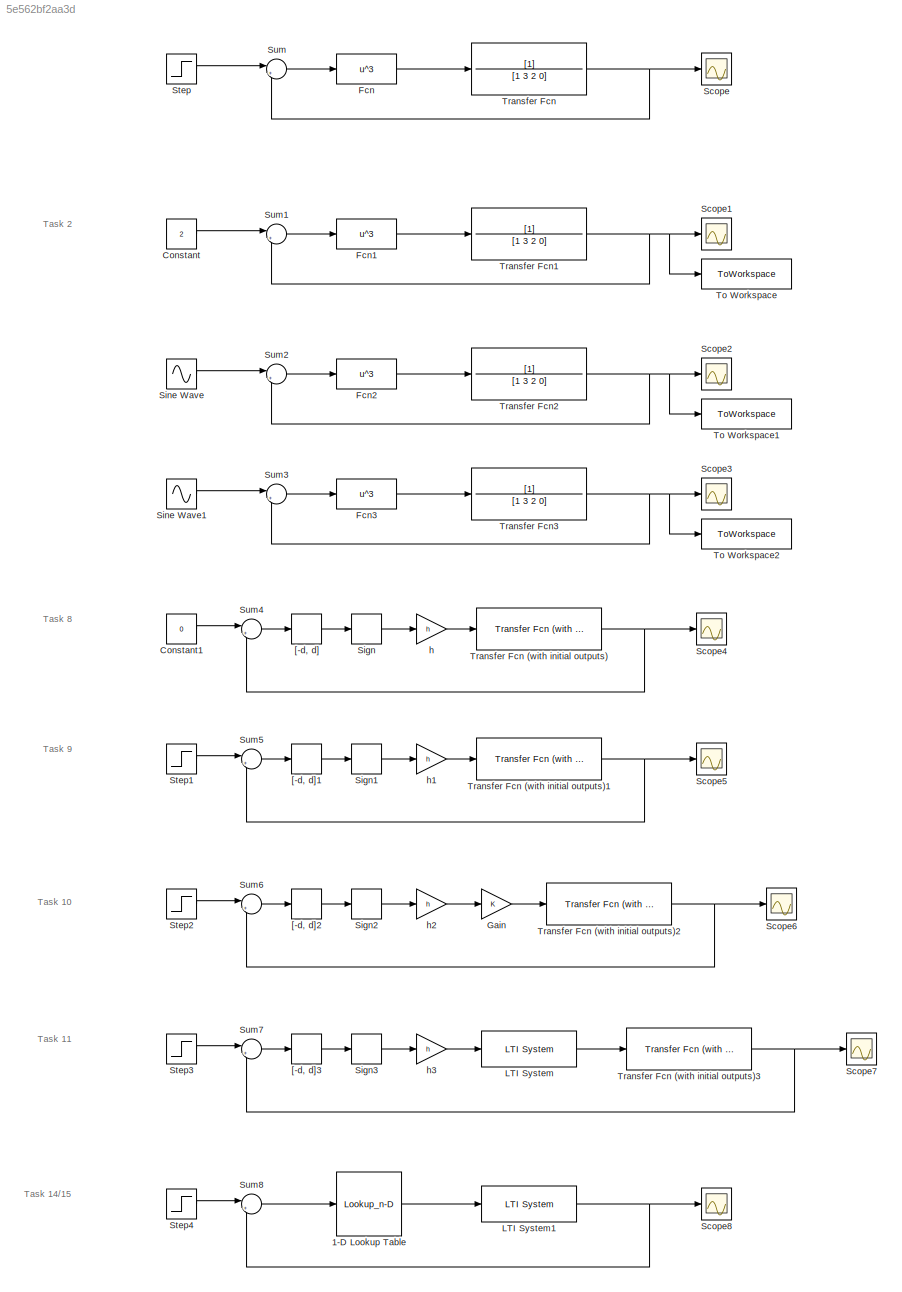
MODEL slx_5e562bf2aa3d
KIND model
CONFIG AbsTol = auto
CONFIG EnableMultiTasking = off
CONFIG FixedStep = auto
CONFIG MaxStep = auto
CONFIG MinStep = auto
CONFIG RelTol = 1e-3
CONFIG SampleTimeConstraint = Unconstrained
CONFIG Solver = VariableStepAuto
CONFIG SolverName = VariableStepAuto
CONFIG StartTime = 0.0
CONFIG StopTime = 20
BLOCK [Lookup_n-D] 1-D Lookup Table
  BreakpointsForDimension1 = [-1 0 1]
  InternalRulePriority = Speed
  NumberOfTableDimensions = 1
  Ports = [1, 1]
  RndMeth = Simplest
  Table = [-0.2 0 1]
BLOCK [Constant] Constant
  Value = 2
BLOCK [Constant] Constant1
  Value = 0
BLOCK [Fcn] Fcn
  Expr = u^3
BLOCK [Fcn] Fcn1
  Expr = u^3
BLOCK [Fcn] Fcn2
  Expr = u^3
BLOCK [Fcn] Fcn3
  Expr = u^3
BLOCK [Gain] Gain
  Gain = K
BLOCK [Reference] LTI System  REF=cstblocks/LTI System
  Ports = [1, 1]
  SourceBlock = cstblocks/LTI System
  SourceProductBaseCode = CT
  SourceType = LTI Block
BLOCK [Reference] LTI System1  REF=cstblocks/LTI System
  Ports = [1, 1]
  SourceBlock = cstblocks/LTI System
  SourceProductBaseCode = CT
  SourceType = LTI Block
BLOCK [Scope] Scope
  Floating = off
  NumInputPorts = 1
  Ports = [1]
  ScopeSpecificationString = Simulink.scopes.TimeScopeBlockCfg('CurrentConfiguration', extmgr.ConfigurationSet(extmgr.Configuration('Core','General UI',true),extmgr.Configuration('Core','Source UI',true),extmgr.Configuration('Sources','WiredSimulink',true),extmgr.Configuration('Visuals','Time Domain',true,'SerializedDisplays',{struct('MinYLimReal','-0.10775','MaxYLimReal','0.96975','YLabelReal','','MinYLimMag','0.00000','MaxY...<+1332ch>
BLOCK [Scope] Scope1
  Floating = off
  NumInputPorts = 1
  Ports = [1]
  ScopeSpecificationString = Simulink.scopes.TimeScopeBlockCfg('CurrentConfiguration', extmgr.ConfigurationSet(extmgr.Configuration('Core','General UI',true),extmgr.Configuration('Core','Source UI',true),extmgr.Configuration('Sources','WiredSimulink',true,'DataLoggingVariableName','ScopeData1'),extmgr.Configuration('Visuals','Time Domain',true,'SerializedDisplays',{struct('MinYLimReal','-0.84375','MaxYLimReal','7.59375','YLab...<+1371ch>
BLOCK [Scope] Scope2
  Floating = off
  NumInputPorts = 1
  Ports = [1]
  ScopeSpecificationString = Simulink.scopes.TimeScopeBlockCfg('CurrentConfiguration', extmgr.ConfigurationSet(extmgr.Configuration('Core','General UI',true),extmgr.Configuration('Core','Source UI',true),extmgr.Configuration('Sources','WiredSimulink',true,'DataLoggingVariableName','ScopeData2'),extmgr.Configuration('Visuals','Time Domain',true,'SerializedDisplays',{struct('MinYLimReal','-0.84375','MaxYLimReal','7.59375','YLab...<+1371ch>
BLOCK [Scope] Scope3
  Floating = off
  NumInputPorts = 1
  Ports = [1]
  ScopeSpecificationString = Simulink.scopes.TimeScopeBlockCfg('CurrentConfiguration', extmgr.ConfigurationSet(extmgr.Configuration('Core','General UI',true),extmgr.Configuration('Core','Source UI',true),extmgr.Configuration('Sources','WiredSimulink',true,'DataLoggingVariableName','ScopeData3'),extmgr.Configuration('Visuals','Time Domain',true,'SerializedDisplays',{struct('MinYLimReal','-0.3989','MaxYLimReal','3.59009','YLabe...<+1370ch>
BLOCK [Scope] Scope4
  Floating = off
  NumInputPorts = 1
  Ports = [1]
  ScopeSpecificationString = Simulink.scopes.TimeScopeBlockCfg('CurrentConfiguration', extmgr.ConfigurationSet(extmgr.Configuration('Core','General UI',true),extmgr.Configuration('Core','Source UI',true),extmgr.Configuration('Sources','WiredSimulink',true,'DataLoggingVariableName','ScopeData4'),extmgr.Configuration('Visuals','Time Domain',true,'SerializedDisplays',{struct('MinYLimReal','-0.74983','MaxYLimReal','0.74187','YLab...<+1479ch>
BLOCK [Scope] Scope5
  Floating = off
  NumInputPorts = 1
  Ports = [1]
  ScopeSpecificationString = Simulink.scopes.TimeScopeBlockCfg('CurrentConfiguration', extmgr.ConfigurationSet(extmgr.Configuration('Core','General UI',true),extmgr.Configuration('Core','Source UI',true),extmgr.Configuration('Sources','WiredSimulink',true,'DataLoggingVariableName','ScopeData5'),extmgr.Configuration('Visuals','Time Domain',true,'SerializedDisplays',{struct('MinYLimReal','-4.28823','MaxYLimReal','4.31116','YLab...<+1480ch>
BLOCK [Scope] Scope6
  Floating = off
  NumInputPorts = 1
  Ports = [1]
  ScopeSpecificationString = Simulink.scopes.TimeScopeBlockCfg('CurrentConfiguration', extmgr.ConfigurationSet(extmgr.Configuration('Core','General UI',true),extmgr.Configuration('Core','Source UI',true),extmgr.Configuration('Sources','WiredSimulink',true,'DataLoggingVariableName','ScopeData1'),extmgr.Configuration('Visuals','Time Domain',true,'SerializedDisplays',{struct('MinYLimReal','-4.28823','MaxYLimReal','4.31116','YLab...<+1480ch>
BLOCK [Scope] Scope7
  Floating = off
  NumInputPorts = 1
  Ports = [1]
  ScopeSpecificationString = Simulink.scopes.TimeScopeBlockCfg('CurrentConfiguration', extmgr.ConfigurationSet(extmgr.Configuration('Core','General UI',true),extmgr.Configuration('Core','Source UI',true),extmgr.Configuration('Sources','WiredSimulink',true,'DataLoggingVariableName','ScopeData2'),extmgr.Configuration('Visuals','Time Domain',true,'SerializedDisplays',{struct('MinYLimReal','-4.28823','MaxYLimReal','4.31116','YLab...<+1480ch>
BLOCK [Scope] Scope8
  Floating = off
  NumInputPorts = 1
  Ports = [1]
  ScopeSpecificationString = Simulink.scopes.TimeScopeBlockCfg('CurrentConfiguration', extmgr.ConfigurationSet(extmgr.Configuration('Core','General UI',true),extmgr.Configuration('Core','Source UI',true),extmgr.Configuration('Sources','WiredSimulink',true,'DataLoggingVariableName','ScopeData3'),extmgr.Configuration('Visuals','Time Domain',true,'SerializedDisplays',{struct('MinYLimReal','-0.74705','MaxYLimReal','6.72347','YLab...<+1455ch>
BLOCK [Signum] Sign
BLOCK [Signum] Sign1
BLOCK [Signum] Sign2
BLOCK [Signum] Sign3
BLOCK [Sin] Sine Wave
  Amplitude = 0.5
  Frequency = 100
  Phase = pi/2
  Ports = [0, 1]
  SampleTime = 0
BLOCK [Sin] Sine Wave1
  Amplitude = 0.5
  Bias = 2
  Frequency = 100
  Phase = pi/2
  Ports = [0, 1]
  SampleTime = 0
BLOCK [Step] Step
  SampleTime = 0
  Time = 2
BLOCK [Step] Step1
  After = 2
  SampleTime = 0
  Time = 5
BLOCK [Step] Step2
  After = 2
  SampleTime = 0
  Time = 5
BLOCK [Step] Step3
  After = 2
  SampleTime = 0
  Time = 5
BLOCK [Step] Step4
  SampleTime = 0
  Time = 0
BLOCK [Sum] Sum
  Inputs = |+-
  Ports = [2, 1]
BLOCK [Sum] Sum1
  Inputs = |+-
  Ports = [2, 1]
BLOCK [Sum] Sum2
  Inputs = |+-
  Ports = [2, 1]
BLOCK [Sum] Sum3
  Inputs = |+-
  Ports = [2, 1]
BLOCK [Sum] Sum4
  Inputs = |+-
  Ports = [2, 1]
BLOCK [Sum] Sum5
  Inputs = |+-
  Ports = [2, 1]
BLOCK [Sum] Sum6
  Inputs = |+-
  Ports = [2, 1]
BLOCK [Sum] Sum7
  Inputs = |+-
  Ports = [2, 1]
BLOCK [Sum] Sum8
  Inputs = |+-
  Ports = [2, 1]
BLOCK [ToWorkspace] To Workspace
  FixptAsFi = on
  MaxDataPoints = inf
  Ports = [1]
  SampleTime = -1
  VariableName = task2a
BLOCK [ToWorkspace] To Workspace1
  FixptAsFi = on
  MaxDataPoints = inf
  Ports = [1]
  SampleTime = -1
  VariableName = task2b
BLOCK [ToWorkspace] To Workspace2
  FixptAsFi = on
  MaxDataPoints = inf
  Ports = [1]
  SampleTime = -1
  VariableName = task2c
BLOCK [TransferFcn] Transfer Fcn
  Denominator = [1 3 2 0]
BLOCK [Reference] Transfer Fcn (with initial outputs)  REF=simulink_extras/Additional
Linear/Transfer Fcn
(with initial outputs)
  Ports = [1, 1]
  SourceBlock = simulink_extras/Additional\nLinear/Transfer Fcn\n(with initial outputs)
  SourceProductBaseCode = SL
  SourceType = Transfer Function with Initial Outputs
BLOCK [Reference] Transfer Fcn (with initial outputs)1  REF=simulink_extras/Additional
Linear/Transfer Fcn
(with initial outputs)
  Ports = [1, 1]
  SourceBlock = simulink_extras/Additional\nLinear/Transfer Fcn\n(with initial outputs)
  SourceProductBaseCode = SL
  SourceType = Transfer Function with Initial Outputs
BLOCK [Reference] Transfer Fcn (with initial outputs)2  REF=simulink_extras/Additional
Linear/Transfer Fcn
(with initial outputs)
  Ports = [1, 1]
  SourceBlock = simulink_extras/Additional\nLinear/Transfer Fcn\n(with initial outputs)
  SourceProductBaseCode = SL
  SourceType = Transfer Function with Initial Outputs
BLOCK [Reference] Transfer Fcn (with initial outputs)3  REF=simulink_extras/Additional
Linear/Transfer Fcn
(with initial outputs)
  Ports = [1, 1]
  SourceBlock = simulink_extras/Additional\nLinear/Transfer Fcn\n(with initial outputs)
  SourceProductBaseCode = SL
  SourceType = Transfer Function with Initial Outputs
BLOCK [TransferFcn] Transfer Fcn1
  Denominator = [1 3 2 0]
BLOCK [TransferFcn] Transfer Fcn2
  Denominator = [1 3 2 0]
BLOCK [TransferFcn] Transfer Fcn3
  Denominator = [1 3 2 0]
BLOCK [DeadZone] [-d, d]
  LowerValue = -d
  UpperValue = d
BLOCK [DeadZone] [-d, d]1
  LowerValue = -d
  UpperValue = d
BLOCK [DeadZone] [-d, d]2
  LowerValue = -d
  UpperValue = d
BLOCK [DeadZone] [-d, d]3
  LowerValue = -d
  UpperValue = d
BLOCK [Gain] h
  Gain = h
BLOCK [Gain] h1
  Gain = h
BLOCK [Gain] h2
  Gain = h
BLOCK [Gain] h3
  Gain = h
ANNOTATION (root): Task 10
ANNOTATION (root): Task 11
ANNOTATION (root): Task 14/15
ANNOTATION (root): Task 2
ANNOTATION (root): Task 8
ANNOTATION (root): Task 9
LINE 1-D Lookup Table:1 -> LTI System1:1
LINE Constant1:1 -> Sum4:1
LINE Constant:1 -> Sum1:1
LINE Fcn1:1 -> Transfer Fcn1:1
LINE Fcn2:1 -> Transfer Fcn2:1
LINE Fcn3:1 -> Transfer Fcn3:1
LINE Fcn:1 -> Transfer Fcn:1
LINE Gain:1 -> Transfer Fcn (with initial outputs)2:1
NET LTI System1:1 -> Scope8:1, Sum8:2
LINE LTI System:1 -> Transfer Fcn (with initial outputs)3:1
LINE Sign1:1 -> h1:1
LINE Sign2:1 -> h2:1
LINE Sign3:1 -> h3:1
LINE Sign:1 -> h:1
LINE Sine Wave1:1 -> Sum3:1
LINE Sine Wave:1 -> Sum2:1
LINE Step1:1 -> Sum5:1
LINE Step2:1 -> Sum6:1
LINE Step3:1 -> Sum7:1
LINE Step4:1 -> Sum8:1
LINE Step:1 -> Sum:1
LINE Sum1:1 -> Fcn1:1
LINE Sum2:1 -> Fcn2:1
LINE Sum3:1 -> Fcn3:1
LINE Sum4:1 -> [-d, d]:1
LINE Sum5:1 -> [-d, d]1:1
LINE Sum6:1 -> [-d, d]2:1
LINE Sum7:1 -> [-d, d]3:1
LINE Sum8:1 -> 1-D Lookup Table:1
LINE Sum:1 -> Fcn:1
NET Transfer Fcn (with initial outputs)1:1 -> Scope5:1, Sum5:2
NET Transfer Fcn (with initial outputs)2:1 -> Scope6:1, Sum6:2
NET Transfer Fcn (with initial outputs)3:1 -> Scope7:1, Sum7:2
NET Transfer Fcn (with initial outputs):1 -> Scope4:1, Sum4:2
NET Transfer Fcn1:1 -> Scope1:1, Sum1:2, To Workspace:1
NET Transfer Fcn2:1 -> Scope2:1, Sum2:2, To Workspace1:1
NET Transfer Fcn3:1 -> Scope3:1, Sum3:2, To Workspace2:1
NET Transfer Fcn:1 -> Scope:1, Sum:2
LINE [-d, d]1:1 -> Sign1:1
LINE [-d, d]2:1 -> Sign2:1
LINE [-d, d]3:1 -> Sign3:1
LINE [-d, d]:1 -> Sign:1
LINE h1:1 -> Transfer Fcn (with initial outputs)1:1
LINE h2:1 -> Gain:1
LINE h3:1 -> LTI System:1
LINE h:1 -> Transfer Fcn (with initial outputs):1
note: NET lines group one-source signal fan-out (src -> all destinations, sorted); 1:1 wires keep LINE
